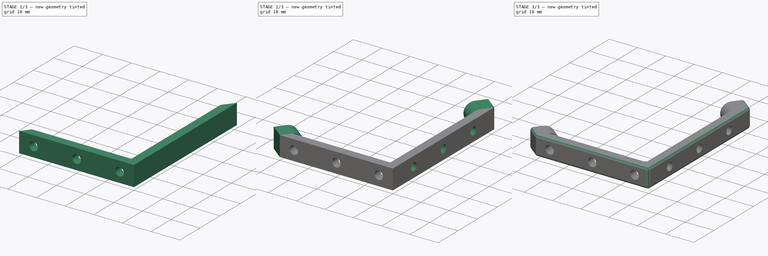
[diagram: build sequence overview — one tinted view per stage of 3, left to right]
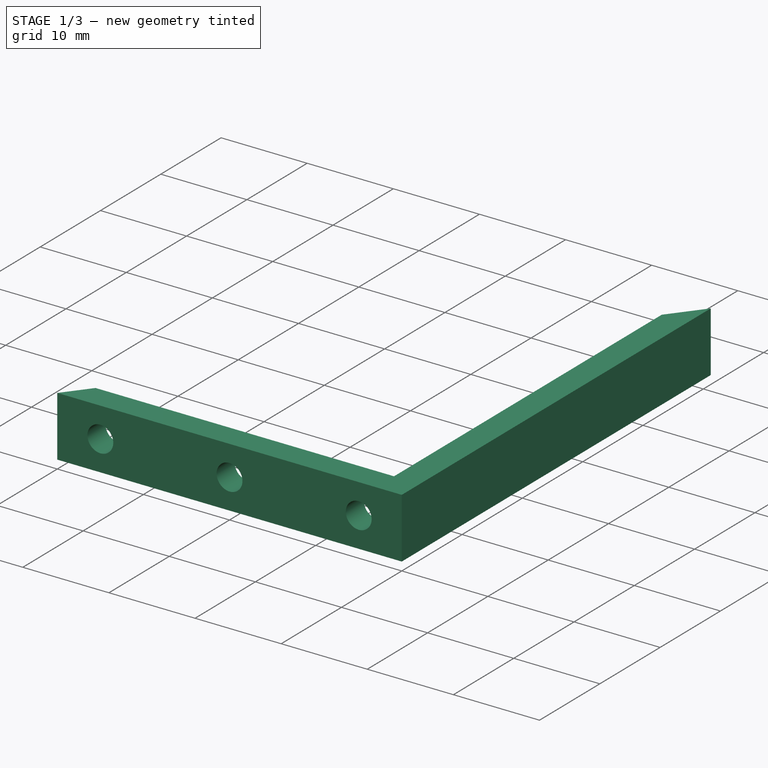
[diagram: stage 1 of 3 — iso view after this stage's code; geometry added in this stage tinted green]
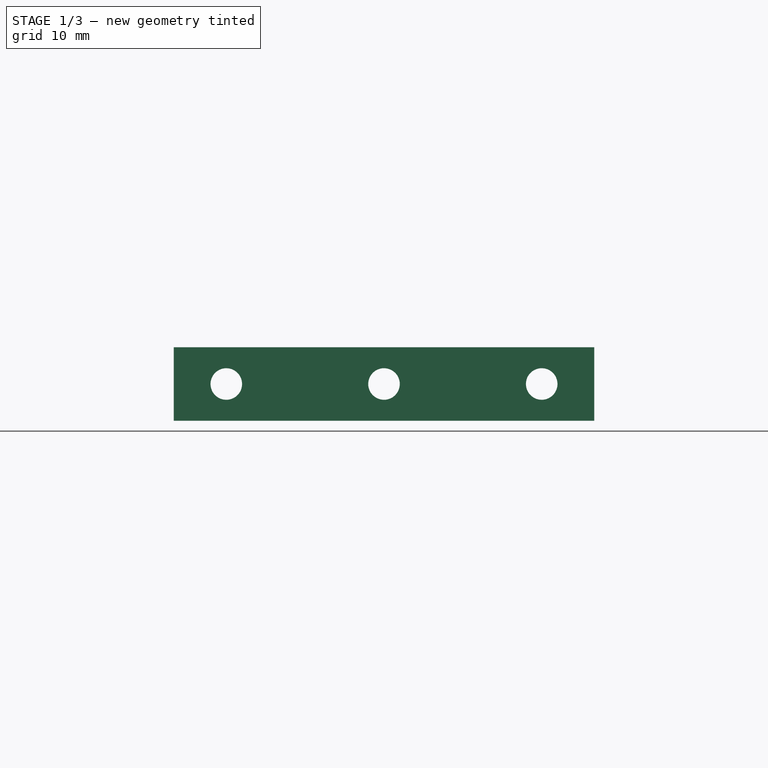
[diagram: stage 1 of 3 — front view after this stage's code; geometry added in this stage tinted green]
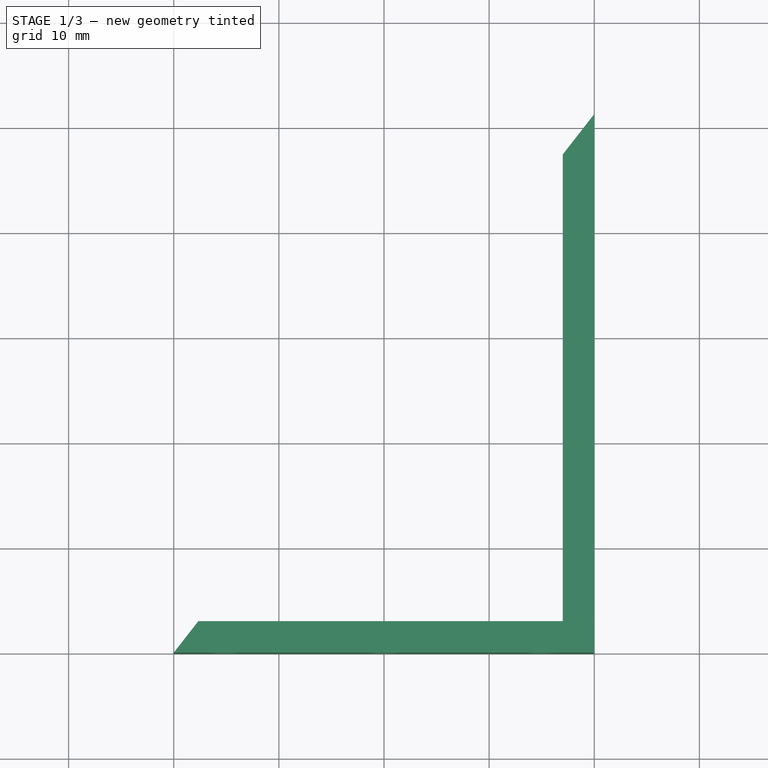
[diagram: stage 1 of 3 — top view after this stage's code; geometry added in this stage tinted green]
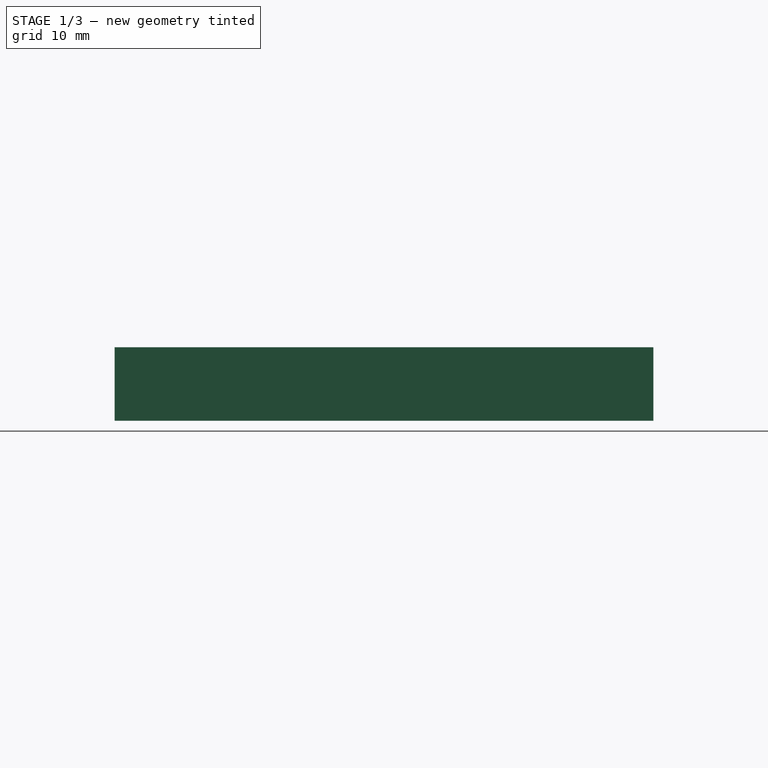
[diagram: stage 1 of 3 — right view after this stage's code; geometry added in this stage tinted green]
FCSTD DOCUMENT  (FreeCAD 1.1R38794 (Git))
Label: display
License: All rights reserved
LicenseURL: https://en.wikipedia.org/wiki/All_rights_reserved
objects: Sketcher::SketchObject×5, PartDesign::Pocket×3, PartDesign::Pad×2, PartDesign::Fillet×2, PartDesign::Body×1
note: 32 computed .brp shape members not serialized (recipe doc carries the construction recipe); baked Part::Feature solids carry a one-line shape summary decoded from their .brp

FEATURE [Sketcher::SketchObject] Sketch
  ArcFitTolerance = 1e-06
  AttachmentSupport = -> [XY_Plane]
  FullyConstrained = true
  MakeInternals = false
  MapMode = 5
  sketch-geometry (9):
    g0: LineSegment [constr] StartX=-40 StartY=0 StartZ=0 EndX=0 EndY=0 EndZ=0
    g1: LineSegment [constr] StartX=0 StartY=0 StartZ=0 EndX=0 EndY=51.2348 EndZ=0
    g2: LineSegment [constr] StartX=0 StartY=51.2348 StartZ=0 EndX=-40 EndY=0 EndZ=0
    g3: LineSegment StartX=-40 StartY=0 StartZ=0 EndX=-37.6578 EndY=3 EndZ=0
    g4: LineSegment StartX=0 StartY=51.2348 StartZ=0 EndX=0 EndY=0 EndZ=0
    g5: LineSegment StartX=0 StartY=0 StartZ=0 EndX=-40 EndY=0 EndZ=0
    g6: LineSegment StartX=-37.6578 StartY=3 StartZ=0 EndX=-3 EndY=3 EndZ=0
    g7: LineSegment StartX=-3 StartY=3 StartZ=0 EndX=-3 EndY=47.3921 EndZ=0
    g8: LineSegment StartX=-3 StartY=47.3921 StartZ=0 EndX=0 EndY=51.2348 EndZ=0
  constraints (25):
    c: PointOnObject(g0,g-1)
    c: Coincident(g0,g-1)
    c: Coincident(g0,g1)
    c: PointOnObject(g1,g-2)
    c: Coincident(g1,g2)
    c: Coincident(g2,g0)
    c: Distance(g2) = 65
    c: DistanceX(g0,g0) = 40
    c: PointOnObject(g3,g0)
    c: PointOnObject(g8,g1)
    c: Coincident(g8,g4)
    c: Coincident(g4,g0)
    c: Coincident(g4,g5)
    c: Coincident(g5,g3)
    c: Parallel(g3,g2)
    c: Horizontal(g6)
    c: Coincident(g6,g7)
    c: Vertical(g7)
    c: DistanceX(g6,g0) = 3
    c: DistanceY(g0,g6) = 3
    c: Coincident(g7,g8)
    c: Coincident(g3,g6)
    c: Parallel(g3,g8)
    c: PointOnObject(g7,g2)
    c: PointOnObject(g3,g2)
FEATURE [PartDesign::Pad] Pad
  Direction = (0,0,1)
  Length = 7
  Length2 = 10
  Profile = -> Sketch
  ReferenceAxis = -> Sketch [N_Axis]
  Refine = true
  Suppressed = false
  Type = 0
FEATURE [Sketcher::SketchObject] Sketch001
  ArcFitTolerance = 1e-06
  AttachmentSupport = -> [Pad]
  ExternalGeometry = -> [Pad]
  FullyConstrained = false
  MakeInternals = false
  MapMode = 5
  Placement = pos=(0,0,0) rot=(1,0,0;1.5708rad)
  sketch-geometry (5):
    g0: LineSegment [constr] StartX=-61.047 StartY=3.5 StartZ=0 EndX=21.047 EndY=3.5 EndZ=0
    g1: Circle CenterX=-35 CenterY=3.5 CenterZ=0 NormalX=0 NormalY=0 NormalZ=1 AngleXU=0 Radius=1.5
    g2: Circle CenterX=-20 CenterY=3.5 CenterZ=0 NormalX=0 NormalY=0 NormalZ=1 AngleXU=0 Radius=1.5
    g3: Circle CenterX=-5 CenterY=3.5 CenterZ=0 NormalX=0 NormalY=0 NormalZ=1 AngleXU=0 Radius=1.5
    g4: LineSegment [constr] StartX=-20 StartY=14.1841 StartZ=0 EndX=-20 EndY=-3.31439 EndZ=0
  constraints (10):
    c: PointOnObject(g1,g0)
    c: Symmetric(g0,g0,g2)
    c: Symmetric(g1,g3,g2)
    c: DistanceX(g1,g3) = 30
    c: Equal(g1,g2)
    c: Equal(g2,g3)
    c: Diameter(g2) = 3
    c: Symmetric(g-3,g-3,g0)
    c: Symmetric(g-3,g-1,g4)
    c: PointOnObject(g2,g4)
FEATURE [PartDesign::Pocket] Pocket
  BaseFeature = -> Pad
  Direction = (0,1,-2e-16)
  Length = 5
  Length2 = 5
  Profile = -> Sketch001
  ReferenceAxis = -> Sketch001 [N_Axis]
  Refine = true
  Suppressed = false
  Type = 1
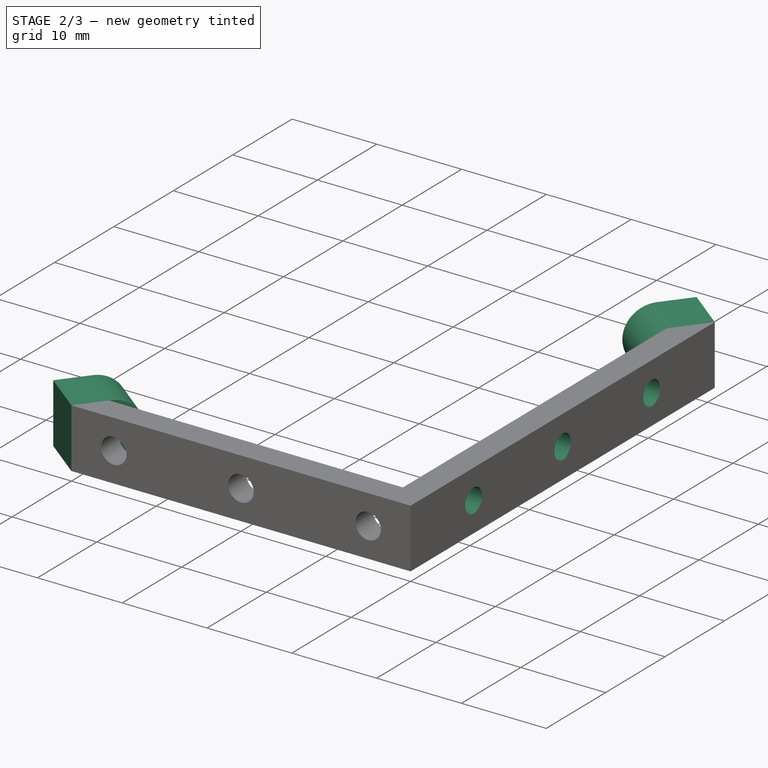
[diagram: stage 2 of 3 — iso view after this stage's code; geometry added in this stage tinted green]
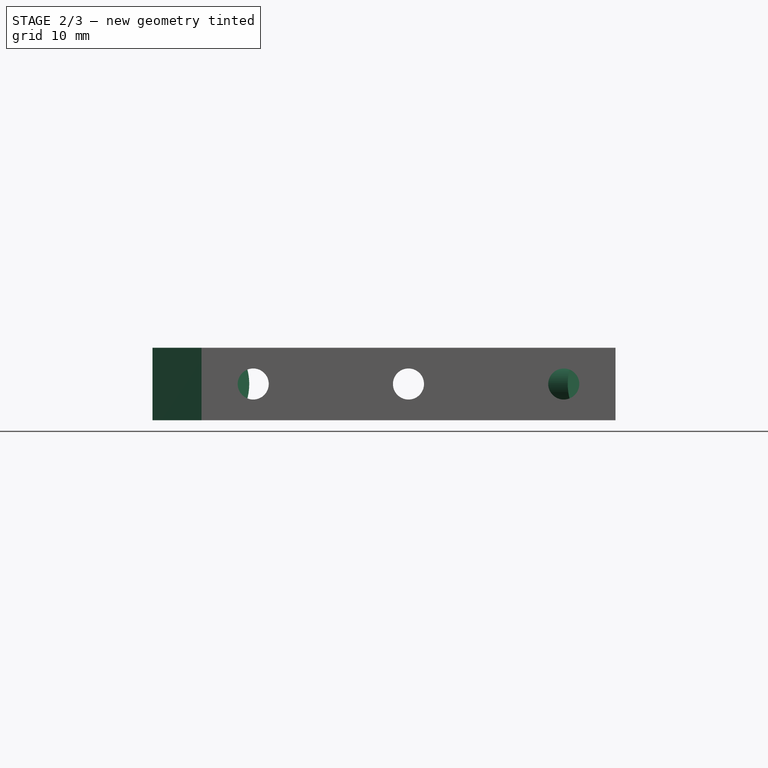
[diagram: stage 2 of 3 — front view after this stage's code; geometry added in this stage tinted green]
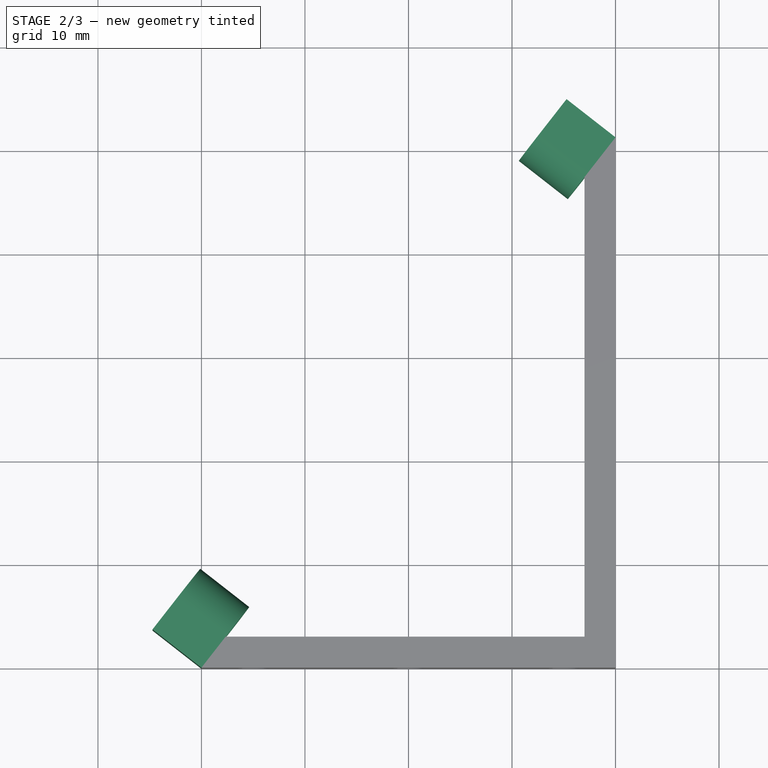
[diagram: stage 2 of 3 — top view after this stage's code; geometry added in this stage tinted green]
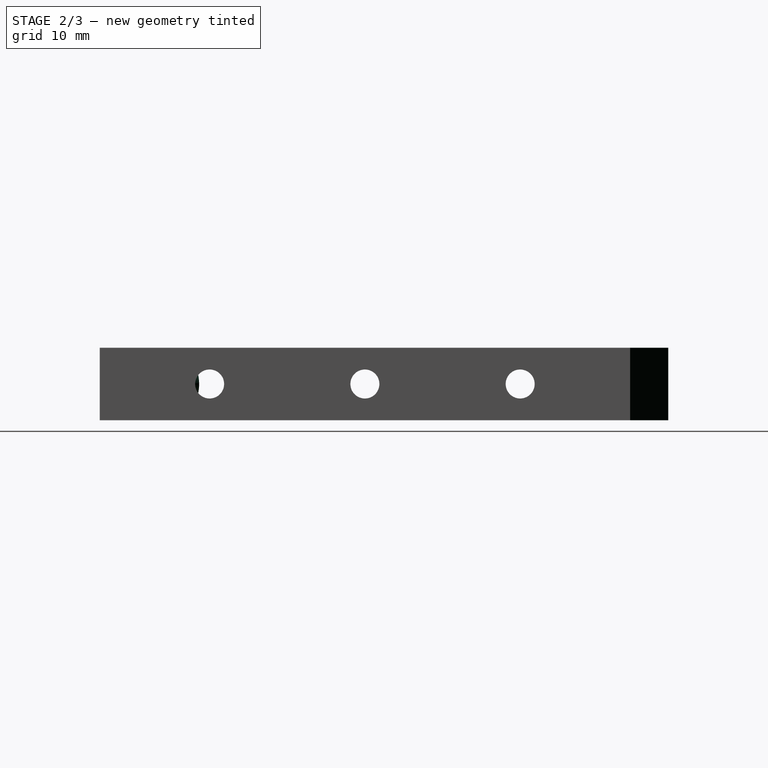
[diagram: stage 2 of 3 — right view after this stage's code; geometry added in this stage tinted green]
FEATURE [Sketcher::SketchObject] Sketch002
  ArcFitTolerance = 1e-06
  AttachmentSupport = -> [Pocket]
  ExternalGeometry = -> [Pocket]
  FullyConstrained = false
  MakeInternals = false
  MapMode = 5
  Placement = pos=(0,0,0) rot=(0.57735,0.57735,0.57735;2.0944rad)
  sketch-geometry (5):
    g0: LineSegment [constr] StartX=-17.7943 StartY=3.5 StartZ=0 EndX=69.029 EndY=3.5 EndZ=0
    g1: Circle CenterX=10.6174 CenterY=3.5 CenterZ=0 NormalX=0 NormalY=0 NormalZ=1 AngleXU=0 Radius=1.4
    g2: Circle CenterX=25.6174 CenterY=3.5 CenterZ=0 NormalX=0 NormalY=0 NormalZ=1 AngleXU=0 Radius=1.4
    g3: Circle CenterX=40.6174 CenterY=3.5 CenterZ=0 NormalX=0 NormalY=0 NormalZ=1 AngleXU=0 Radius=1.4
    g4: LineSegment [constr] StartX=25.6174 StartY=19.5795 StartZ=0 EndX=25.6174 EndY=-10.5537 EndZ=0
  constraints (10):
    c: Symmetric(g-3,g-3,g0)
    c: PointOnObject(g1,g0)
    c: Symmetric(g0,g0,g2)
    c: Symmetric(g1,g3,g2)
    c: DistanceX(g1,g3) = 30
    c: Equal(g1,g2)
    c: Equal(g2,g3)
    c: Diameter(g3) = 2.8
    c: Symmetric(g-3,g-1,g4)
    c: PointOnObject(g2,g4)
FEATURE [PartDesign::Pocket] Pocket001
  BaseFeature = -> Pocket
  Direction = (-1,0,0)
  Length = 5
  Length2 = 5
  Profile = -> Sketch002
  ReferenceAxis = -> Sketch002 [N_Axis]
  Refine = true
  Suppressed = false
  Type = 1
FEATURE [Sketcher::SketchObject] Sketch003
  ArcFitTolerance = 1e-06
  AttachmentSupport = -> [Pocket001]
  ExternalGeometry = -> [Pocket001]
  FullyConstrained = false
  MakeInternals = false
  MapMode = 5
  Placement = pos=(-24.8521,19.4025,0) rot=(-0.326164,0.668437,0.668437;3.77216rad)
  sketch-geometry (10):
    g0: LineSegment [constr] StartX=-53.6204 StartY=3.5 StartZ=0 EndX=47.4764 EndY=3.5 EndZ=0
    g1: ArcOfCircle CenterX=-36.3846 CenterY=3.5 CenterZ=0 NormalX=0 NormalY=0 NormalZ=1 AngleXU=0 Radius=3.5 StartAngle=4.71239 EndAngle=7.85398
    g2: ArcOfCircle CenterX=20.6154 CenterY=3.5 CenterZ=0 NormalX=0 NormalY=0 NormalZ=1 AngleXU=0 Radius=3.5 StartAngle=1.5708 EndAngle=4.71239
    g3: LineSegment [constr] StartX=-7.88462 StartY=-17.4034 StartZ=0 EndX=-7.88462 EndY=-15.5383 EndZ=0
    g4: LineSegment StartX=-40.3846 StartY=7 StartZ=0 EndX=-40.3846 EndY=-1.8e-15 EndZ=0
    g5: LineSegment StartX=-40.3846 StartY=-1.8e-15 StartZ=0 EndX=-36.3846 EndY=-1.8e-15 EndZ=0
    g6: LineSegment StartX=-40.3846 StartY=7 StartZ=0 EndX=-36.3846 EndY=7 EndZ=0
    g7: LineSegment StartX=20.6154 StartY=0 StartZ=0 EndX=24.6154 EndY=8e-16 EndZ=0
    g8: LineSegment StartX=24.6154 StartY=8e-16 StartZ=0 EndX=24.6154 EndY=7 EndZ=0
    g9: LineSegment StartX=24.6154 StartY=7 StartZ=0 EndX=20.6154 EndY=7 EndZ=0
  constraints (21):
    c: Symmetric(g-3,g-3,g0)
    c: PointOnObject(g1,g0)
    c: Equal(g1,g2)
    c: Diameter(g2) = 7
    c: DistanceX(g1,g2) = 57
    c: Symmetric(g2,g1,g3)
    c: Symmetric(g-3,g-4,g3)
    c: Coincident(g-3,g4)
    c: Coincident(g4,g-3)
    c: Coincident(g4,g5)
    c: Coincident(g4,g6)
    c: Tangent(g1,g6) = 1.5708
    c: Tangent(g1,g5) = -1.5708
    c: Coincident(g7,g-4)
    c: Coincident(g7,g8)
    c: Coincident(g8,g-4)
    c: Coincident(g8,g9)
    c: Tangent(g2,g7) = -1.5708
    c: Coincident(g2,g9)
    c: Equal(g7,g9)
    c: Equal(g5,g6)
FEATURE [PartDesign::Pad] Pad001
  BaseFeature = -> Pocket001
  Direction = (-0.788227,0.615385,0)
  Length = 6
  Length2 = 10
  Profile = -> Sketch003
  ReferenceAxis = -> Sketch003 [N_Axis]
  Refine = true
  Suppressed = false
  Type = 0
FEATURE [Sketcher::SketchObject] Sketch004
  ArcFitTolerance = 1e-06
  AttachmentSupport = -> [Pad001]
  ExternalGeometry = -> [Pad001]
  FullyConstrained = true
  MakeInternals = false
  MapMode = 5
  Placement = pos=(-29.5814,23.0948,-4.2e-15) rot=(-0.326164,0.668437,0.668437;3.77216rad)
  sketch-geometry (2):
    g0: Circle CenterX=-36.3846 CenterY=3.5 CenterZ=0 NormalX=0 NormalY=0 NormalZ=1 AngleXU=0 Radius=1.4
    g1: Circle CenterX=20.6154 CenterY=3.5 CenterZ=0 NormalX=0 NormalY=0 NormalZ=1 AngleXU=0 Radius=1.4
  constraints (4):
    c: Coincident(g0,g-3)
    c: Coincident(g1,g-4)
    c: Equal(g0,g1)
    c: Diameter(g0) = 2.8
FEATURE [PartDesign::Pocket] Pocket002
  BaseFeature = -> Pad001
  Direction = (0.788227,-0.615385,-2e-16)
  Length = 6
  Length2 = 5
  Profile = -> Sketch004
  ReferenceAxis = -> Sketch004 [N_Axis]
  Refine = true
  Suppressed = false
  Type = 0
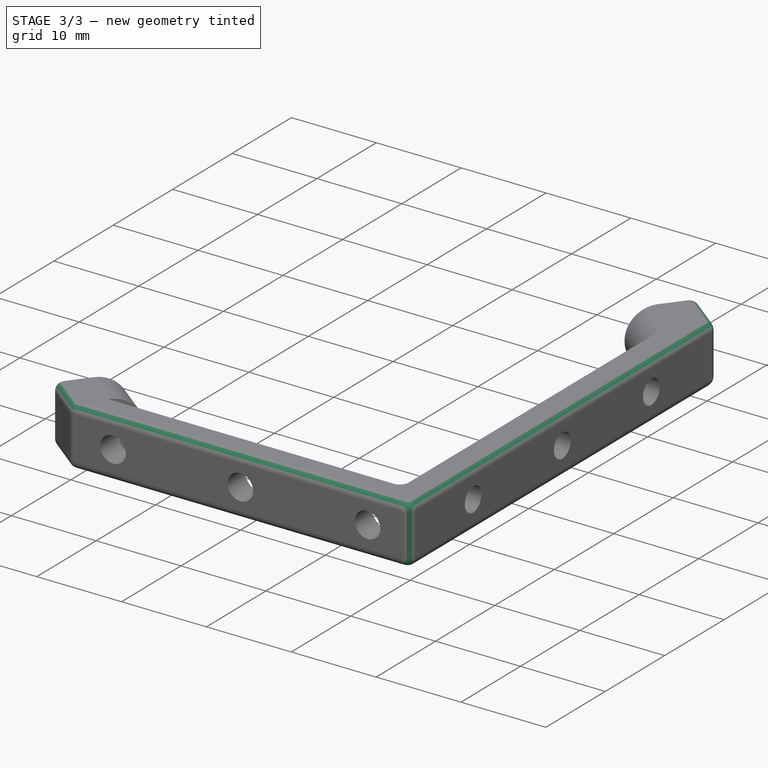
[diagram: stage 3 of 3 — iso view after this stage's code; geometry added in this stage tinted green]
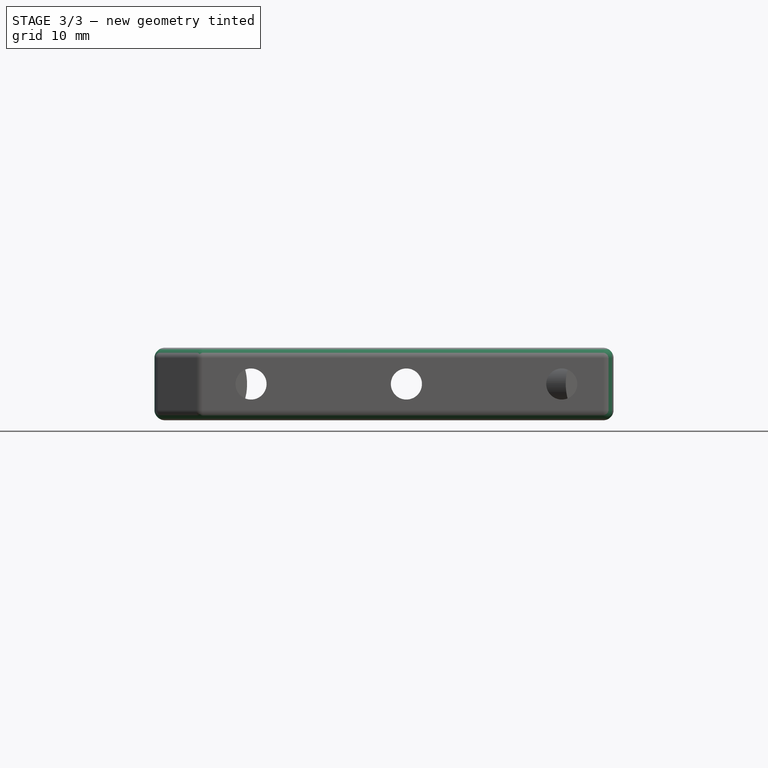
[diagram: stage 3 of 3 — front view after this stage's code; geometry added in this stage tinted green]
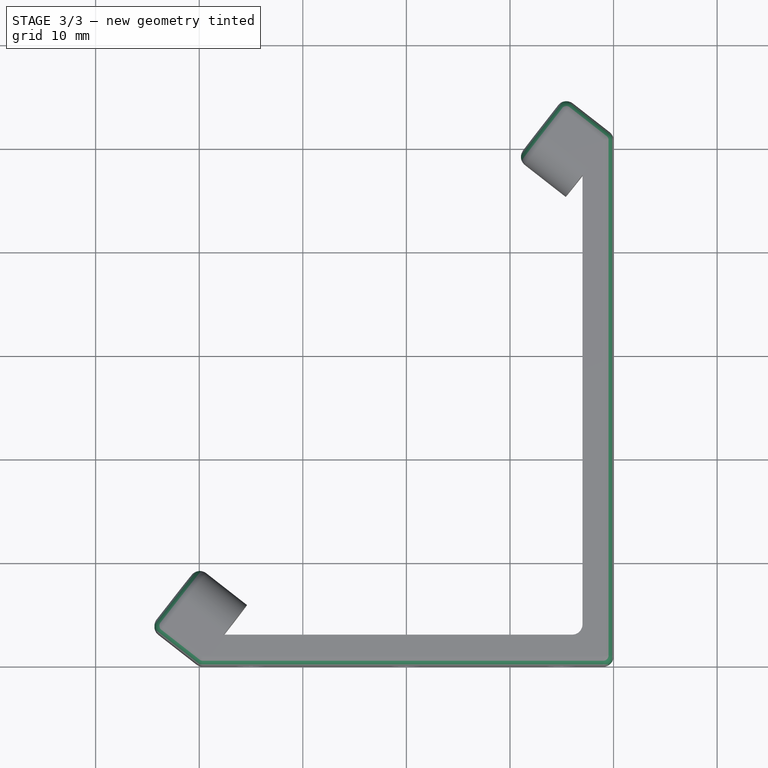
[diagram: stage 3 of 3 — top view after this stage's code; geometry added in this stage tinted green]
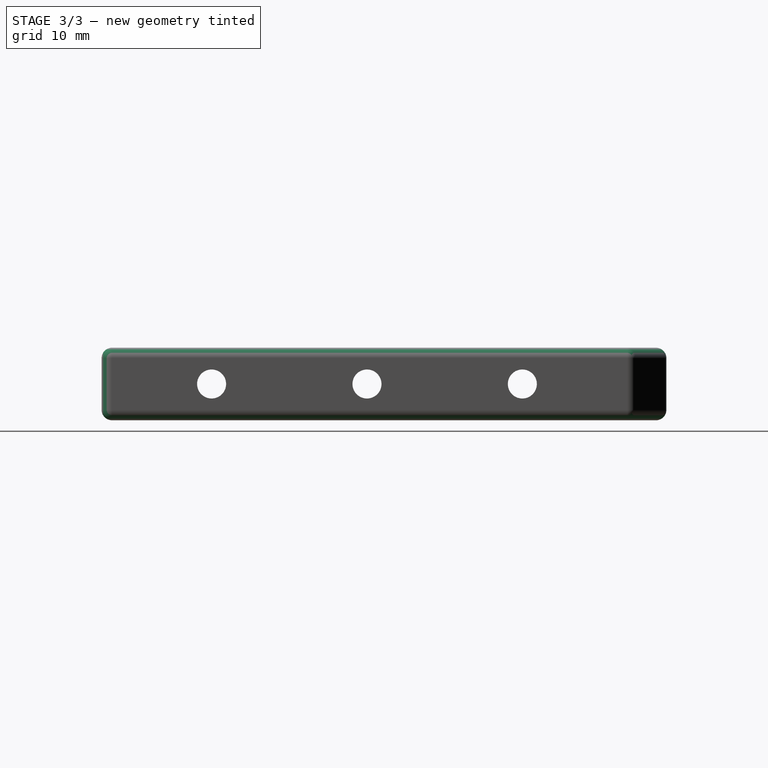
[diagram: stage 3 of 3 — right view after this stage's code; geometry added in this stage tinted green]
FEATURE [PartDesign::Fillet] Fillet
  Base = -> Pocket002 [Edge41,Edge8,Edge1,Edge4,Edge34,Edge51]
  BaseFeature = -> Pocket002
  Radius = 1
  Refine = true
  SupportTransform = false
  Suppressed = false
  UseAllEdges = false
FEATURE [PartDesign::Fillet] Fillet001
  Base = -> Fillet [Edge23,Edge26]
  BaseFeature = -> Fillet
  Radius = 1
  Refine = true
  SupportTransform = false
  Suppressed = false
  UseAllEdges = false
FEATURE [PartDesign::Body] Body
  AllowCompound = false
  Group = -> [Sketch,Pad,Sketch001,Pocket,Sketch002,Pocket001,Sketch003,Pad001,Sketch004,Pocket002,Fillet,Fillet001]
  Origin = -> Origin
  Tip = -> Fillet001
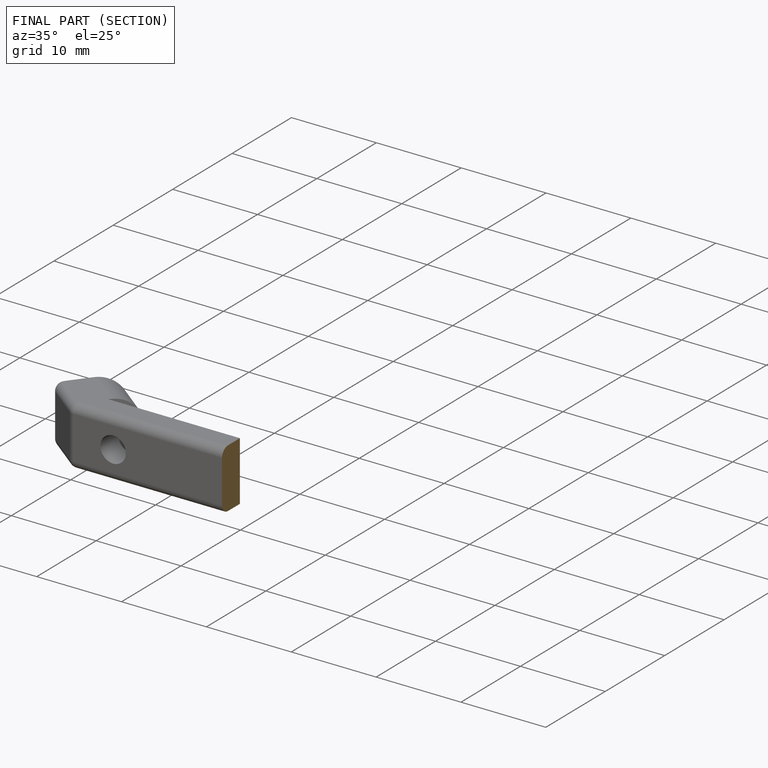
[diagram: finished part — half-section view (interior)]
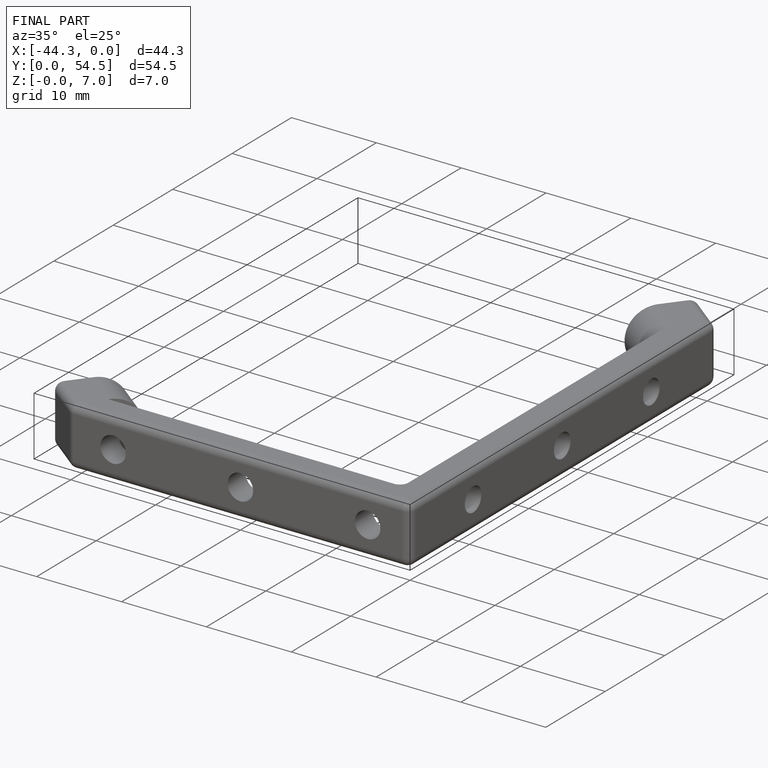
[diagram: finished part — iso view with bounding-box wireframe]
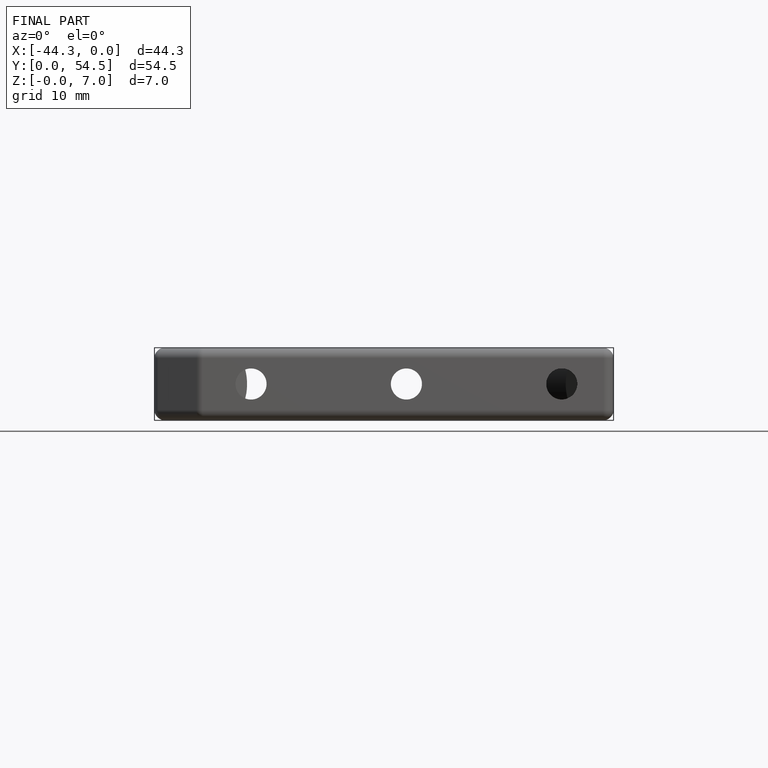
[diagram: finished part — front view with bounding-box wireframe]
